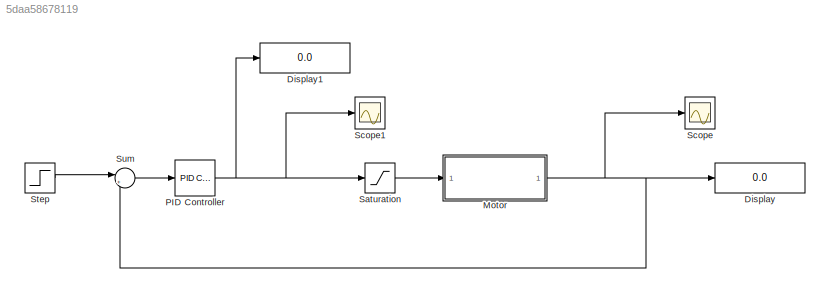
MODEL slx_5daa58678119
KIND model
BLOCK [Display] Display
  Decimation = 1
  Ports = [1]
BLOCK [Display] Display1
  Decimation = 1
  Ports = [1]
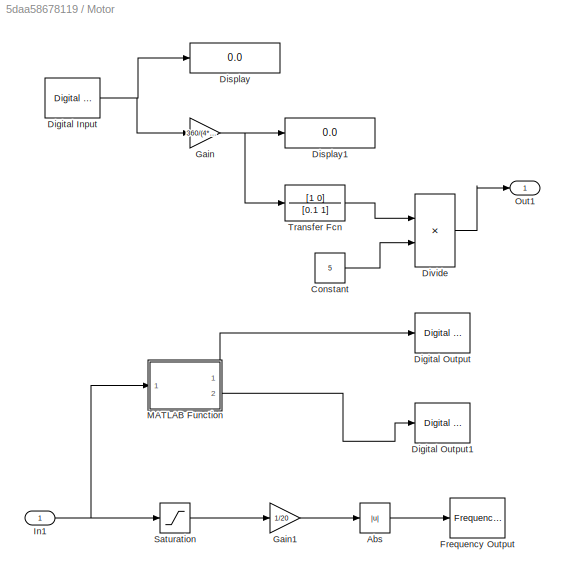
BLOCK [SubSystem] Motor 
  FunctionWithSeparateData = off
  MaskHideContents = off
  MinAlgLoopOccurrences = off
  Opaque = off
  Ports = [1, 1]
  PropExecContextOutsideSubsystem = off
  RTWSystemCode = Auto
  RequestExecContextInheritance = off
BLOCK [Abs] Motor /Abs
  SaturateOnIntegerOverflow = off
BLOCK [Constant] Motor /Constant
  Value = 5
BLOCK [Reference] Motor /Digital Input  REF=rtwinlib/Digital Input
  AttributesFormatString = National Instruments\nPCI-6221 [auto]
  BitMode = 1
  Channels = 1
  DataType = 1
  DrvAddress = 4294967295
  DrvName = National_Instruments/PCI-6221
  DrvOptions = [0 15 61600 2 3]
  MaxMissedTicks = 10
  Ports = [0, 1]
  SampleTime = 0.01
  ShowMissedTicks = off
  SourceBlock = rtwinlib/Digital Input
  SourceType = RTWin Digital Input
  YieldWhenWaiting = off
BLOCK [Reference] Motor /Digital Output  REF=rtwinlib/Digital Output
  AttributesFormatString = National Instruments\nPCI-6221 [auto]
  BitMode = 1
  Channels = 3
  DrvAddress = 4294967295
  DrvName = National_Instruments/PCI-6221
  DrvOptions = [0 15 61600 2 3]
  FinalValue = []
  InitialValue = []
  MaxMissedTicks = 10
  Ports = [1]
  SampleTime = 0.01
  ShowMissedTicks = off
  SourceBlock = rtwinlib/Digital Output
  SourceType = RTWin Digital Output
  YieldWhenWaiting = off
BLOCK [Reference] Motor /Digital Output1  REF=rtwinlib/Digital Output
  AttributesFormatString = National Instruments\nPCI-6221 [auto]
  BitMode = 1
  Channels = 4
  DrvAddress = 4294967295
  DrvName = National_Instruments/PCI-6221
  DrvOptions = [0 15 61600 2 3]
  FinalValue = []
  InitialValue = []
  MaxMissedTicks = 10
  Ports = [1]
  SampleTime = 0.01
  ShowMissedTicks = off
  SourceBlock = rtwinlib/Digital Output
  SourceType = RTWin Digital Output
  YieldWhenWaiting = off
BLOCK [Display] Motor /Display
  Decimation = 1
  Ports = [1]
BLOCK [Display] Motor /Display1
  Decimation = 1
  Ports = [1]
BLOCK [Product] Motor /Divide
  InputSameDT = off
  Inputs = */
  OutDataTypeStr = Inherit: Inherit via internal rule
  Ports = [2, 1]
  RndMeth = Floor
  SaturateOnIntegerOverflow = off
BLOCK [Reference] Motor /Frequency Output  REF=rtwinlib/Frequency Output
  AttributesFormatString = National Instruments\nPCI-6221 [auto]
  Channels = 2
  DrvAddress = 4294967295
  DrvName = National_Instruments/PCI-6221
  DrvOptions = [0 15 61600 2 3]
  Duty = 0
  DutyFinalValue = 0
  DutySource = 2
  Frequency = 1200
  FrequencyFinalValue = []
  FrequencySource = 1
  MaxMissedTicks = 10
  Ports = [1]
  SampleTime = 0.01
  ShowMissedTicks = off
  SourceBlock = rtwinlib/Frequency Output
  SourceType = RTWin Frequency Output
  YieldWhenWaiting = off
BLOCK [Gain] Motor /Gain
  Gain = 360/(4*240)
  OutDataTypeStr = Inherit: Inherit via internal rule
  ParamDataTypeStr = Inherit: Inherit via internal rule
  SaturateOnIntegerOverflow = off
BLOCK [Gain] Motor /Gain1
  Gain = 1/20
  OutDataTypeStr = Inherit: Inherit via internal rule
  ParamDataTypeStr = Inherit: Inherit via internal rule
  SaturateOnIntegerOverflow = off
BLOCK [Inport] Motor /In1
  IconDisplay = Port number
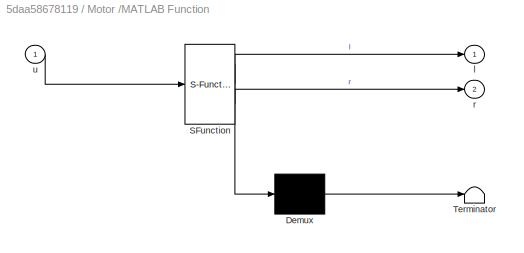
BLOCK [SubSystem] Motor /MATLAB Function
  ErrorFcn = Stateflow.Translate.translate
  FunctionWithSeparateData = off
  MaskHideContents = off
  MinAlgLoopOccurrences = off
  Opaque = off
  PermitHierarchicalResolution = ExplicitOnly
  Ports = [1, 2]
  PropExecContextOutsideSubsystem = off
  RTWSystemCode = Auto
  RequestExecContextInheritance = off
  SFBlockType = MATLAB Function
  TreatAsAtomicUnit = on
BLOCK [Demux] Motor /MATLAB Function/ Demux 
  Outputs = 1
  Ports = [1, 1]
BLOCK [S-Function] Motor /MATLAB Function/ SFunction 
  EnableBusSupport = on
  FunctionName = sf_sfun
  PortCounts = [1 3]
  Ports = [1, 3]
  Tag = Stateflow S-Function T5_HLKH 2
BLOCK [Terminator] Motor /MATLAB Function/ Terminator 
BLOCK [Outport] Motor /MATLAB Function/l
  IconDisplay = Port number
BLOCK [Outport] Motor /MATLAB Function/r
  IconDisplay = Port number
  Port = 2
BLOCK [Inport] Motor /MATLAB Function/u
  IconDisplay = Port number
BLOCK [Outport] Motor /Out1
  IconDisplay = Port number
BLOCK [Saturate] Motor /Saturation
  InputPortMap = u0
  LowerLimit = -20
  Ports = [1, 1]
  UpperLimit = 20
BLOCK [TransferFcn] Motor /Transfer Fcn
  Denominator = [0.1 1]
  Numerator = [1 0]
BLOCK [Reference] PID Controller  REF=simulink/Continuous/PID Controller
  AntiWindupMode = none
  Controller = PID
  D = 0
  DOutDataTypeStr = Inherit: Inherit via internal rule
  DOutMax = []
  DOutMin = []
  DParamDataTypeStr = Inherit: Inherit via internal rule
  DParamMax = []
  DParamMin = []
  ExternalReset = none
  FilterContinuousStateAttributes = ''
  FilterMethod = Forward Euler
  FilterOutDataTypeStr = Inherit: Inherit via internal rule
  FilterOutMax = []
  FilterOutMin = []
  FilterRTWStateStorageClass = Auto
  FilterStateMustResolveToSignalObject = off
  Form = Parallel
  I = 0.05
  IOutDataTypeStr = Inherit: Inherit via internal rule
  IOutMax = []
  IOutMin = []
  IParamDataTypeStr = Inherit: Inherit via internal rule
  IParamMax = []
  IParamMin = []
  IgnoreLimit = off
  InitialConditionForFilter = 0
  InitialConditionForIntegrator = 0
  InitialConditionSource = internal
  IntegratorContinuousStateAttributes = ''
  IntegratorMethod = Forward Euler
  IntegratorOutDataTypeStr = Inherit: Inherit via internal rule
  IntegratorOutMax = []
  IntegratorOutMin = []
  IntegratorRTWStateStorageClass = Auto
  IntegratorStateMustResolveToSignalObject = off
  Kb = 1
  KbOutDataTypeStr = Inherit: Inherit via internal rule
  KbOutMax = []
  KbOutMin = []
  KbParamDataTypeStr = Inherit: Inherit via internal rule
  KbParamMax = []
  KbParamMin = []
  Kt = 1
  KtOutDataTypeStr = Inherit: Inherit via internal rule
  KtOutMax = []
  KtOutMin = []
  KtParamDataTypeStr = Inherit: Inherit via internal rule
  KtParamMax = []
  KtParamMin = []
  LimitOutput = off
  LinearizeAsGain = on
  LockScale = off
  LowerSaturationLimit = -inf
  N = 100
  NOutDataTypeStr = Inherit: Inherit via internal rule
  NOutMax = []
  NOutMin = []
  NParamDataTypeStr = Inherit: Inherit via internal rule
  NParamMax = []
  NParamMin = []
  P = 0.0052
  POutDataTypeStr = Inherit: Inherit via internal rule
  POutMax = []
  POutMin = []
  PParamDataTypeStr = Inherit: Inherit via internal rule
  PParamMax = []
  PParamMin = []
  Ports = [1, 1]
  RndMeth = Floor
  SampleTime = 1
  SaturateOnIntegerOverflow = off
  SaturationOutDataTypeStr = Inherit: Same as input
  SaturationOutMax = []
  SaturationOutMin = []
  SourceBlock = simulink/Continuous/PID Controller
  SourceType = PID 1dof
  SumAccumDataTypeStr = Inherit: Inherit via internal rule
  SumDAccumDataTypeStr = Inherit: Inherit via internal rule
  SumDOutDataTypeStr = Inherit: Inherit via internal rule
  SumDOutMax = []
  SumDOutMin = []
  SumI1AccumDataTypeStr = Inherit: Inherit via internal rule
  SumI1OutDataTypeStr = Inherit: Inherit via internal rule
  SumI1OutMax = []
  SumI1OutMin = []
  SumI2AccumDataTypeStr = Inherit: Inherit via internal rule
  SumI2OutDataTypeStr = Inherit: Inherit via internal rule
  SumI2OutMax = []
  SumI2OutMin = []
  SumI3AccumDataTypeStr = Inherit: Inherit via internal rule
  SumI3OutDataTypeStr = Inherit: Inherit via internal rule
  SumI3OutMax = []
  SumI3OutMin = []
  SumOutDataTypeStr = Inherit: Inherit via internal rule
  SumOutMax = []
  SumOutMin = []
  TimeDomain = Continuous-time
  TrackingMode = off
  UpperSaturationLimit = inf
  ZeroCross = on
BLOCK [Saturate] Saturation
  InputPortMap = u0
  LowerLimit = -20
  Ports = [1, 1]
  UpperLimit = 20
BLOCK [Scope] Scope
  DataFormat = StructureWithTime
  Floating = off
  NumInputPorts = 1
  Ports = [1]
  SampleTime = 0
  ShowLegends = off
  ZoomMode = xonly
BLOCK [Scope] Scope1
  DataFormat = StructureWithTime
  Floating = off
  NumInputPorts = 1
  Ports = [1]
  SampleTime = 0
  SaveName = ScopeData1
  ShowLegends = off
  YMax = 2350
  YMin = 1400
BLOCK [Step] Step
  After = 1200
  SampleTime = 0
  Time = 0
BLOCK [Sum] Sum
  IconShape = round
  InputSameDT = off
  Inputs = |+-
  OutDataTypeStr = Inherit: Inherit via internal rule
  Ports = [2, 1]
  SaturateOnIntegerOverflow = off
LINE Motor /Abs:1 -> Motor /Frequency Output:1
LINE Motor /Constant:1 -> Motor /Divide:2
NET Motor /Digital Input:1 -> Motor /Display:1, Motor /Gain:1
LINE Motor /Divide:1 -> Motor /Out1:1
LINE Motor /Gain1:1 -> Motor /Abs:1
NET Motor /Gain:1 -> Motor /Display1:1, Motor /Transfer Fcn:1
NET Motor /In1:1 -> Motor /MATLAB Function:1, Motor /Saturation:1
LINE Motor /MATLAB Function:1 -> Motor /Digital Output:1
LINE Motor /MATLAB Function:2 -> Motor /Digital Output1:1
LINE Motor /Saturation:1 -> Motor /Gain1:1
LINE Motor /Transfer Fcn:1 -> Motor /Divide:1
NET Motor :1 -> Display:1, Scope:1, Sum:2
NET PID Controller:1 -> Display1:1, Saturation:1, Scope1:1
LINE Saturation:1 -> Motor :1
LINE Step:1 -> Sum:1
LINE Sum:1 -> PID Controller:1
note: NET lines group one-source signal fan-out (src -> all destinations, sorted); 1:1 wires keep LINE
